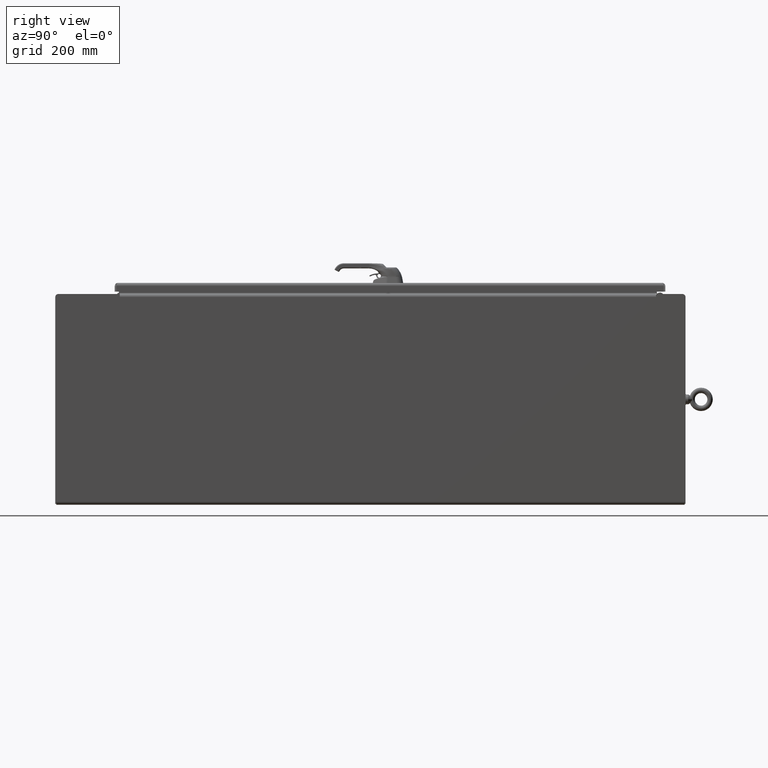
[diagram: clean part render]
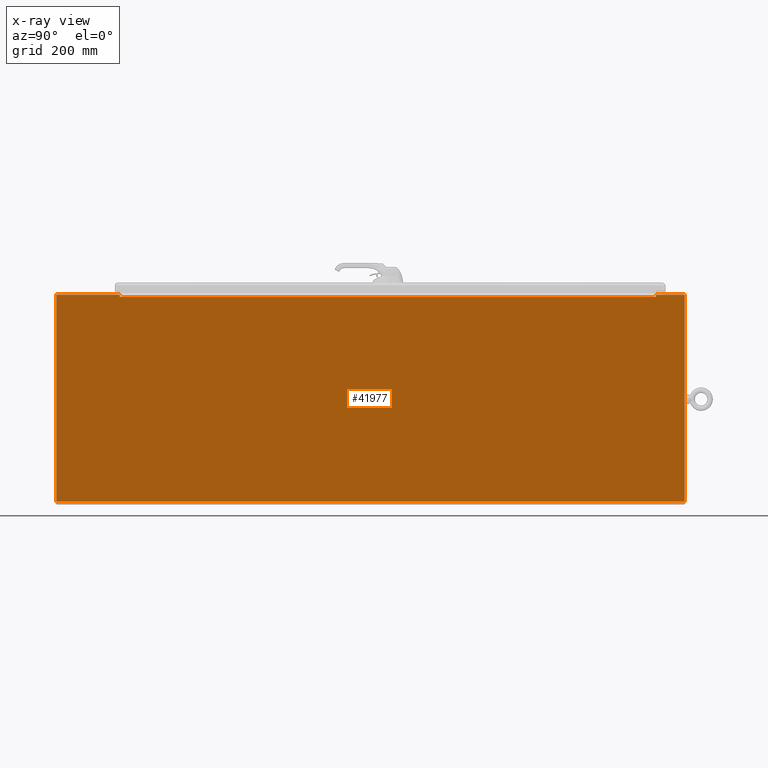
[diagram: x-ray — body ghosted, one internal face saturated and labeled with its STEP entity id]
A machine part, right view, then the same camera in x-ray: the body is ghosted and one INTERNAL B-rep face — a face not visible from any outside direction — is saturated and labeled: STEP entity #41977.
In plain terms, the highlighted planar face has unit normal (1, 0, 0).
Its self-contained STEP definition (entity closure, byte-faithful):
#2182=PLANE('',#45533);
#3291=FACE_OUTER_BOUND('',#5936,.T.);
#5936=EDGE_LOOP('',(#27980,#27981,#27982,#27983,#27984,#27985,#27986,#27987,
#27988,#27989,#27990,#27991));
#11234=LINE('',#63487,#14526);
#11237=LINE('',#63493,#14529);
#11240=LINE('',#63501,#14532);
#11243=LINE('',#63505,#14535);
#11253=LINE('',#63526,#14545);
#11255=LINE('',#63530,#14547);
#11257=LINE('',#63533,#14549);
#11258=LINE('',#63536,#14550);
#11259=LINE('',#63538,#14551);
#11260=LINE('',#63540,#14552);
#11261=LINE('',#63542,#14553);
#11262=LINE('',#63543,#14554);
#14526=VECTOR('',#50478,0.393700787401575);
#14529=VECTOR('',#50483,0.393700787401575);
#14532=VECTOR('',#50488,0.393700787401575);
#14535=VECTOR('',#50493,0.393700787401575);
#14545=VECTOR('',#50507,0.393700787401575);
#14547=VECTOR('',#50511,0.393700787401575);
#14549=VECTOR('',#50515,0.393700787401575);
#14550=VECTOR('',#50518,0.393700787401575);
#14551=VECTOR('',#50519,0.29108);
#14552=VECTOR('',#50520,0.393700787401575);
#14553=VECTOR('',#50521,0.29108);
#14554=VECTOR('',#50522,0.393700787401575);
#17803=VERTEX_POINT('',#63478);
#17804=VERTEX_POINT('',#63482);
#17806=VERTEX_POINT('',#63491);
#17809=VERTEX_POINT('',#63498);
#17810=VERTEX_POINT('',#63500);
#17818=VERTEX_POINT('',#63523);
#17819=VERTEX_POINT('',#63525);
#17820=VERTEX_POINT('',#63529);
#17821=VERTEX_POINT('',#63535);
#17822=VERTEX_POINT('',#63537);
#17823=VERTEX_POINT('',#63539);
#17824=VERTEX_POINT('',#63541);
#21720=EDGE_CURVE('',#17803,#17804,#11234,.T.);
#21723=EDGE_CURVE('',#17804,#17806,#11237,.T.);
#21726=EDGE_CURVE('',#17810,#17809,#11240,.T.);
#21729=EDGE_CURVE('',#17806,#17810,#11243,.T.);
#21739=EDGE_CURVE('',#17819,#17818,#11253,.T.);
#21741=EDGE_CURVE('',#17820,#17803,#11255,.T.);
#21743=EDGE_CURVE('',#17818,#17820,#11257,.T.);
#21744=EDGE_CURVE('',#17809,#17821,#11258,.T.);
#21745=EDGE_CURVE('',#17821,#17822,#11259,.T.);
#21746=EDGE_CURVE('',#17822,#17823,#11260,.T.);
#21747=EDGE_CURVE('',#17824,#17823,#11261,.T.);
#21748=EDGE_CURVE('',#17824,#17819,#11262,.T.);
#27980=ORIENTED_EDGE('',*,*,#21726,.T.);
#27981=ORIENTED_EDGE('',*,*,#21744,.T.);
#27982=ORIENTED_EDGE('',*,*,#21745,.T.);
#27983=ORIENTED_EDGE('',*,*,#21746,.T.);
#27984=ORIENTED_EDGE('',*,*,#21747,.F.);
#27985=ORIENTED_EDGE('',*,*,#21748,.T.);
#27986=ORIENTED_EDGE('',*,*,#21739,.T.);
#27987=ORIENTED_EDGE('',*,*,#21743,.T.);
#27988=ORIENTED_EDGE('',*,*,#21741,.T.);
#27989=ORIENTED_EDGE('',*,*,#21720,.T.);
#27990=ORIENTED_EDGE('',*,*,#21723,.T.);
#27991=ORIENTED_EDGE('',*,*,#21729,.T.);
#41977=ADVANCED_FACE('',(#3291),#2182,.T.);
#45533=AXIS2_PLACEMENT_3D('',#63534,#50516,#50517);
#50478=DIRECTION('',(1.47549006959634E-16,-1.,0.));
#50483=DIRECTION('',(6.08876136679848E-17,0.,-1.));
#50488=DIRECTION('',(-6.08876136679848E-17,0.,1.));
#50493=DIRECTION('',(1.47549006959634E-16,-1.,0.));
#50507=DIRECTION('',(6.08876136679848E-17,0.,-1.));
#50511=DIRECTION('',(-6.08876136679848E-17,0.,1.));
#50515=DIRECTION('',(1.47549006959634E-16,-1.,0.));
#50516=DIRECTION('center_axis',(1.,1.47549006959634E-16,6.08876136679848E-17));
#50517=DIRECTION('ref_axis',(6.08876136679849E-17,-1.48910014026238E-16,
-1.));
#50518=DIRECTION('',(1.47086680131666E-16,-1.,-6.68114497718063E-18));
#50519=DIRECTION('',(1.50163418643082E-16,2.99142166578557E-32,-1.));
#50520=DIRECTION('',(-1.47549006959634E-16,1.,8.33376473866197E-35));
#50521=DIRECTION('',(-1.50163418643082E-16,-1.48074568948825E-32,-1.));
#50522=DIRECTION('',(1.47086680131666E-16,-1.,-6.68114497718063E-18));
#63478=CARTESIAN_POINT('',(0.103999999999999,-3.271,23.771));
#63482=CARTESIAN_POINT('',(0.104000000000008,-64.646,23.771));
#63487=CARTESIAN_POINT('',(0.104000000000006,-50.30225,23.771));
#63491=CARTESIAN_POINT('',(0.104000000000008,-64.646,23.7708));
#63493=CARTESIAN_POINT('',(0.104000000000008,-64.646,17.8648431512991));
#63498=CARTESIAN_POINT('',(0.104000000000008,-64.6462,24.021));
#63500=CARTESIAN_POINT('',(0.104000000000008,-64.6462,23.7708));
#63501=CARTESIAN_POINT('',(0.104000000000008,-64.6462,17.9899431512991));
#63505=CARTESIAN_POINT('',(0.104000000000006,-50.30235,23.7708));
#63523=CARTESIAN_POINT('',(0.103999999999999,-3.2708,23.7708));
#63525=CARTESIAN_POINT('',(0.103999999999999,-3.2708,24.021));
#63526=CARTESIAN_POINT('',(0.103999999999999,-3.2708,17.8648431512991));
#63529=CARTESIAN_POINT('',(0.103999999999999,-3.271,23.7708));
#63530=CARTESIAN_POINT('',(0.103999999999999,-3.271,17.9899431512991));
#63533=CARTESIAN_POINT('',(0.104000000000001,-19.61475,23.7708));
#63534=CARTESIAN_POINT('Origin',(0.104000000000005,-35.9585,11.9588863025983));
#63535=CARTESIAN_POINT('',(0.104000000000009,-71.917,24.021));
#63536=CARTESIAN_POINT('',(0.103999999999999,-3.73425521572125E-17,24.021));
#63537=CARTESIAN_POINT('',(0.104000000000011,-71.917,0.354));
#63538=CARTESIAN_POINT('',(0.104000000000011,-71.917,-0.560454789606917));
#63539=CARTESIAN_POINT('',(0.104,-3.7229521084735E-17,0.354));
#63540=CARTESIAN_POINT('',(0.104000000000005,-35.9585,0.353999999999999));
#63541=CARTESIAN_POINT('',(0.103999999999999,-3.73425521572125E-17,24.021));
#63542=CARTESIAN_POINT('',(0.104,-3.7229521084735E-17,-0.560454789606917));
#63543=CARTESIAN_POINT('',(0.103999999999999,-3.73425521572125E-17,24.021));